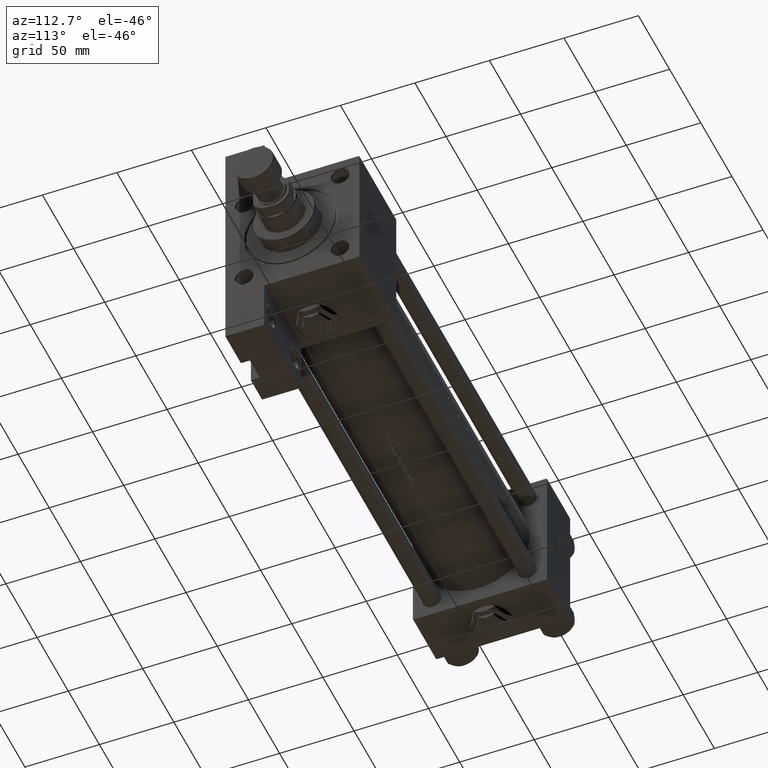
[diagram: clean part render]
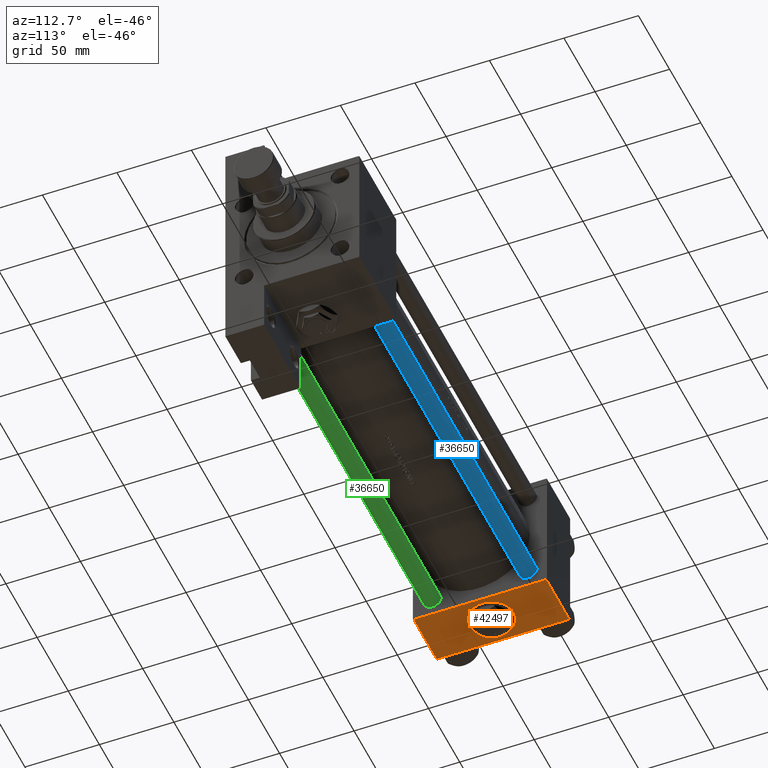
[diagram: same view with three faces highlighted in distinct colors, each labeled with its STEP entity id]
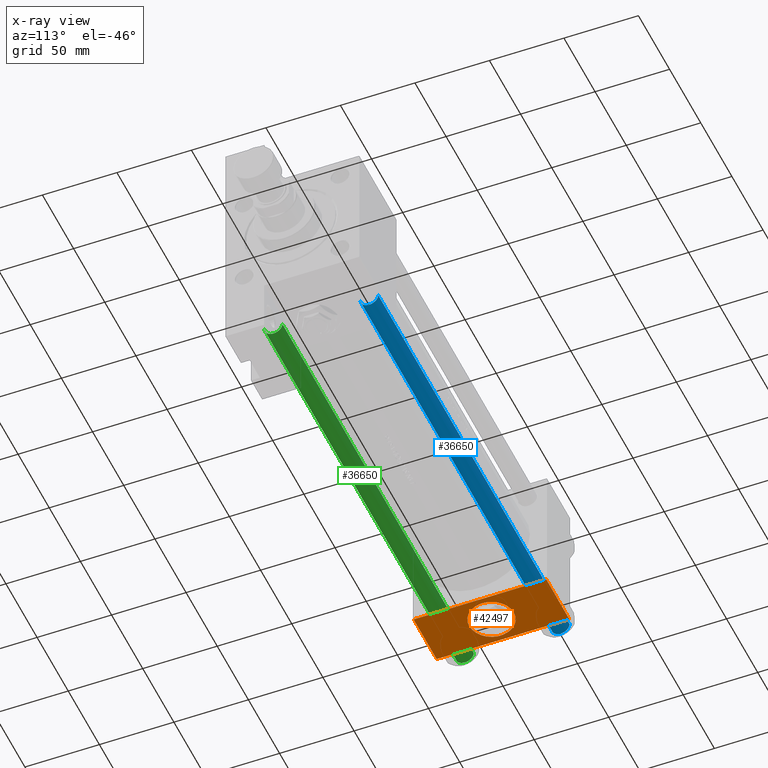
[diagram: x-ray of the same camera — body ghosted, the three highlighted faces saturated]
A machine part, auxiliary view with three faces highlighted in distinct colors.
The next image is the same camera in x-ray (body ghosted, the three faces saturated) — at least one of them is partly hidden behind the body in this view.
Their STEP definitions:

[orange] entity #42497 — the highlighted planar face has unit normal (0, 0, -1).
#186 = CARTESIAN_POINT ( 'NONE',  ( 0.000000000000000000, 44.99999999999998579, -44.49999999999995737 ) ) ;
#733 = VERTEX_POINT ( 'NONE', #7437 ) ;
#854 = CARTESIAN_POINT ( 'NONE',  ( 37.00000000000000000, 44.99999999999998579, 44.50000000000001421 ) ) ;
#3288 = PLANE ( 'NONE',  #39274 ) ;
#3730 = EDGE_CURVE ( 'NONE', #7628, #47874, #37850, .T. ) ;
#4445 = CIRCLE ( 'NONE', #16598, 15.00000000000000178 ) ;
#4680 = DIRECTION ( 'NONE',  ( 0.000000000000000000, 1.000000000000000000, 0.000000000000000000 ) ) ;
#6849 = DIRECTION ( 'NONE',  ( -0.000000000000000000, 1.000000000000000000, 0.000000000000000000 ) ) ;
#6911 = ORIENTED_EDGE ( 'NONE', *, *, #21029, .T. ) ;
#6941 = CARTESIAN_POINT ( 'NONE',  ( 18.50000000000000000, 44.99999999999998579, 0.000000000000000000 ) ) ;
#7437 = CARTESIAN_POINT ( 'NONE',  ( 0.000000000000000000, 44.99999999999998579, 44.50000000000001421 ) ) ;
#7628 = VERTEX_POINT ( 'NONE', #854 ) ;
#9437 = ORIENTED_EDGE ( 'NONE', *, *, #10109, .F. ) ;
#10109 = EDGE_CURVE ( 'NONE', #25025, #46648, #4445, .T. ) ;
#11145 = EDGE_LOOP ( 'NONE', ( #18199, #9437 ) ) ;
#12917 = ORIENTED_EDGE ( 'NONE', *, *, #13966, .T. ) ;
#13966 = EDGE_CURVE ( 'NONE', #733, #7628, #45042, .T. ) ;
#16092 = VECTOR ( 'NONE', #31459, 1000.000000000000000 ) ;
#16403 = VERTEX_POINT ( 'NONE', #186 ) ;
#16598 = AXIS2_PLACEMENT_3D ( 'NONE', #6941, #19123, #38168 ) ;
#16954 = DIRECTION ( 'NONE',  ( 0.000000000000000000, 0.000000000000000000, -1.000000000000000000 ) ) ;
#18028 = FACE_BOUND ( 'NONE', #11145, .T. ) ;
#18199 = ORIENTED_EDGE ( 'NONE', *, *, #45069, .F. ) ;
#18968 = EDGE_CURVE ( 'NONE', #733, #16403, #47659, .T. ) ;
#19123 = DIRECTION ( 'NONE',  ( 0.000000000000000000, 1.000000000000000000, 0.000000000000000000 ) ) ;
#21029 = EDGE_CURVE ( 'NONE', #47874, #16403, #35513, .T. ) ;
#21709 = VECTOR ( 'NONE', #16954, 1000.000000000000000 ) ;
#25025 = VERTEX_POINT ( 'NONE', #29092 ) ;
#25909 = CARTESIAN_POINT ( 'NONE',  ( 37.00000000000000000, 44.99999999999998579, 45.00000000000001421 ) ) ;
#27288 = CARTESIAN_POINT ( 'NONE',  ( 18.50000000000000000, 44.99999999999998579, 0.000000000000000000 ) ) ;
#27787 = DIRECTION ( 'NONE',  ( 0.000000000000000000, 0.000000000000000000, 1.000000000000000000 ) ) ;
#28644 = CARTESIAN_POINT ( 'NONE',  ( 0.000000000000000000, 44.99999999999998579, 45.00000000000001421 ) ) ;
#28671 = VECTOR ( 'NONE', #49501, 1000.000000000000000 ) ;
#28850 = CIRCLE ( 'NONE', #32084, 15.00000000000000178 ) ;
#29092 = CARTESIAN_POINT ( 'NONE',  ( 18.50000000000000355, 44.99999999999998579, -15.00000000000000178 ) ) ;
#29727 = FACE_OUTER_BOUND ( 'NONE', #34301, .T. ) ;
#31349 = VECTOR ( 'NONE', #46192, 1000.000000000000000 ) ;
#31459 = DIRECTION ( 'NONE',  ( -1.000000000000000000, 0.000000000000000000, 0.000000000000000000 ) ) ;
#31639 = ORIENTED_EDGE ( 'NONE', *, *, #18968, .F. ) ;
#32084 = AXIS2_PLACEMENT_3D ( 'NONE', #27288, #4680, #27787 ) ;
#34301 = EDGE_LOOP ( 'NONE', ( #45104, #6911, #31639, #12917 ) ) ;
#34990 = CARTESIAN_POINT ( 'NONE',  ( 37.00000000000000000, 44.99999999999998579, -44.49999999999998579 ) ) ;
#35513 = LINE ( 'NONE', #34990, #16092 ) ;
#37850 = LINE ( 'NONE', #50007, #28671 ) ;
#38168 = DIRECTION ( 'NONE',  ( 0.000000000000000000, 0.000000000000000000, 1.000000000000000000 ) ) ;
#39274 = AXIS2_PLACEMENT_3D ( 'NONE', #25909, #6849, #49486 ) ;
#41843 = CARTESIAN_POINT ( 'NONE',  ( 18.50000000000000000, 44.99999999999998579, 15.00000000000000178 ) ) ;
#42497 = ADVANCED_FACE ( 'NONE', ( #18028, #29727 ), #3288, .T. ) ;
#42680 = CARTESIAN_POINT ( 'NONE',  ( 37.00000000000000000, 44.99999999999998579, -44.49999999999995737 ) ) ;
#45042 = LINE ( 'NONE', #48574, #31349 ) ;
#45069 = EDGE_CURVE ( 'NONE', #46648, #25025, #28850, .T. ) ;
#45104 = ORIENTED_EDGE ( 'NONE', *, *, #3730, .T. ) ;
#46192 = DIRECTION ( 'NONE',  ( 1.000000000000000000, 0.000000000000000000, 0.000000000000000000 ) ) ;
#46648 = VERTEX_POINT ( 'NONE', #41843 ) ;
#47659 = LINE ( 'NONE', #28644, #21709 ) ;
#47874 = VERTEX_POINT ( 'NONE', #42680 ) ;
#48574 = CARTESIAN_POINT ( 'NONE',  ( 37.00000000000000000, 44.99999999999998579, 44.50000000000001421 ) ) ;
#49486 = DIRECTION ( 'NONE',  ( 0.000000000000000000, -0.000000000000000000, 1.000000000000000000 ) ) ;
#49501 = DIRECTION ( 'NONE',  ( 0.000000000000000000, 0.000000000000000000, -1.000000000000000000 ) ) ;
#50007 = CARTESIAN_POINT ( 'NONE',  ( 37.00000000000000000, 44.99999999999998579, 45.00000000000001421 ) ) ;

[blue] entity #36650 — the highlighted cylindrical surface (edge-blend (fillet) strip) has radius 6 mm, axis along (-1, -0, 0).
#429 = ORIENTED_EDGE ( 'NONE', *, *, #10012, .T. ) ;
#449 = CARTESIAN_POINT ( 'NONE',  ( 0.000000000000000000, 0.000000000000000000, 308.0000000000000000 ) ) ;
#1341 = EDGE_CURVE ( 'NONE', #7013, #6409, #8137, .T. ) ;
#1622 = AXIS2_PLACEMENT_3D ( 'NONE', #15727, #11913, #27161 ) ;
#4006 = AXIS2_PLACEMENT_3D ( 'NONE', #40482, #40985, #5683 ) ;
#4343 = CARTESIAN_POINT ( 'NONE',  ( 6.000000000000000888, 7.347880794884120722E-16, 308.0000000000000000 ) ) ;
#5683 = DIRECTION ( 'NONE',  ( 1.000000000000000000, 0.000000000000000000, 0.000000000000000000 ) ) ;
#6409 = VERTEX_POINT ( 'NONE', #25276 ) ;
#7013 = VERTEX_POINT ( 'NONE', #49049 ) ;
#7539 = AXIS2_PLACEMENT_3D ( 'NONE', #449, #11867, #31433 ) ;
#8137 = LINE ( 'NONE', #4343, #17244 ) ;
#10012 = EDGE_CURVE ( 'NONE', #50183, #28275, #26250, .T. ) ;
#11867 = DIRECTION ( 'NONE',  ( -0.000000000000000000, -0.000000000000000000, -1.000000000000000000 ) ) ;
#11913 = DIRECTION ( 'NONE',  ( -0.000000000000000000, -0.000000000000000000, 1.000000000000000000 ) ) ;
#11954 = DIRECTION ( 'NONE',  ( -0.000000000000000000, -0.000000000000000000, -1.000000000000000000 ) ) ;
#15672 = FACE_OUTER_BOUND ( 'NONE', #46973, .T. ) ;
#15727 = CARTESIAN_POINT ( 'NONE',  ( 0.000000000000000000, 0.000000000000000000, 0.5000000000000559552 ) ) ;
#17105 = EDGE_CURVE ( 'NONE', #7013, #50183, #24166, .T. ) ;
#17244 = VECTOR ( 'NONE', #11954, 1000.000000000000000 ) ;
#18764 = CARTESIAN_POINT ( 'NONE',  ( -6.000000000000000888, 0.000000000000000000, 0.5000000000000559552 ) ) ;
#22936 = DIRECTION ( 'NONE',  ( -0.000000000000000000, -0.000000000000000000, -1.000000000000000000 ) ) ;
#24166 = CIRCLE ( 'NONE', #4006, 6.000000000000000888 ) ;
#25276 = CARTESIAN_POINT ( 'NONE',  ( 6.000000000000000888, 7.347880794884120722E-16, 0.5000000000000559552 ) ) ;
#26250 = LINE ( 'NONE', #45787, #31203 ) ;
#26891 = ORIENTED_EDGE ( 'NONE', *, *, #28464, .T. ) ;
#27161 = DIRECTION ( 'NONE',  ( 1.000000000000000000, 0.000000000000000000, 0.000000000000000000 ) ) ;
#28275 = VERTEX_POINT ( 'NONE', #18764 ) ;
#28464 = EDGE_CURVE ( 'NONE', #28275, #6409, #49434, .T. ) ;
#29082 = ORIENTED_EDGE ( 'NONE', *, *, #1341, .F. ) ;
#31180 = CYLINDRICAL_SURFACE ( 'NONE', #7539, 6.000000000000000888 ) ;
#31203 = VECTOR ( 'NONE', #22936, 1000.000000000000000 ) ;
#31433 = DIRECTION ( 'NONE',  ( -1.000000000000000000, 0.000000000000000000, 0.000000000000000000 ) ) ;
#31468 = CARTESIAN_POINT ( 'NONE',  ( -6.000000000000000888, 0.000000000000000000, 307.4999999999999432 ) ) ;
#36650 = ADVANCED_FACE ( 'NONE', ( #15672 ), #31180, .T. ) ;
#40482 = CARTESIAN_POINT ( 'NONE',  ( 0.000000000000000000, 0.000000000000000000, 307.4999999999999432 ) ) ;
#40985 = DIRECTION ( 'NONE',  ( 0.000000000000000000, 0.000000000000000000, -1.000000000000000000 ) ) ;
#44941 = ORIENTED_EDGE ( 'NONE', *, *, #17105, .T. ) ;
#45787 = CARTESIAN_POINT ( 'NONE',  ( -6.000000000000000888, 0.000000000000000000, 308.0000000000000000 ) ) ;
#46973 = EDGE_LOOP ( 'NONE', ( #29082, #44941, #429, #26891 ) ) ;
#49049 = CARTESIAN_POINT ( 'NONE',  ( 6.000000000000000888, 7.347880794884120722E-16, 307.4999999999999432 ) ) ;
#49434 = CIRCLE ( 'NONE', #1622, 6.000000000000000888 ) ;
#50183 = VERTEX_POINT ( 'NONE', #31468 ) ;

[green] entity #36650 — the highlighted cylindrical surface (edge-blend (fillet) strip) has radius 6 mm, axis along (1, 0, 0).
#429 = ORIENTED_EDGE ( 'NONE', *, *, #10012, .T. ) ;
#449 = CARTESIAN_POINT ( 'NONE',  ( 0.000000000000000000, 0.000000000000000000, 308.0000000000000000 ) ) ;
#1341 = EDGE_CURVE ( 'NONE', #7013, #6409, #8137, .T. ) ;
#1622 = AXIS2_PLACEMENT_3D ( 'NONE', #15727, #11913, #27161 ) ;
#4006 = AXIS2_PLACEMENT_3D ( 'NONE', #40482, #40985, #5683 ) ;
#4343 = CARTESIAN_POINT ( 'NONE',  ( 6.000000000000000888, 7.347880794884120722E-16, 308.0000000000000000 ) ) ;
#5683 = DIRECTION ( 'NONE',  ( 1.000000000000000000, 0.000000000000000000, 0.000000000000000000 ) ) ;
#6409 = VERTEX_POINT ( 'NONE', #25276 ) ;
#7013 = VERTEX_POINT ( 'NONE', #49049 ) ;
#7539 = AXIS2_PLACEMENT_3D ( 'NONE', #449, #11867, #31433 ) ;
#8137 = LINE ( 'NONE', #4343, #17244 ) ;
#10012 = EDGE_CURVE ( 'NONE', #50183, #28275, #26250, .T. ) ;
#11867 = DIRECTION ( 'NONE',  ( -0.000000000000000000, -0.000000000000000000, -1.000000000000000000 ) ) ;
#11913 = DIRECTION ( 'NONE',  ( -0.000000000000000000, -0.000000000000000000, 1.000000000000000000 ) ) ;
#11954 = DIRECTION ( 'NONE',  ( -0.000000000000000000, -0.000000000000000000, -1.000000000000000000 ) ) ;
#15672 = FACE_OUTER_BOUND ( 'NONE', #46973, .T. ) ;
#15727 = CARTESIAN_POINT ( 'NONE',  ( 0.000000000000000000, 0.000000000000000000, 0.5000000000000559552 ) ) ;
#17105 = EDGE_CURVE ( 'NONE', #7013, #50183, #24166, .T. ) ;
#17244 = VECTOR ( 'NONE', #11954, 1000.000000000000000 ) ;
#18764 = CARTESIAN_POINT ( 'NONE',  ( -6.000000000000000888, 0.000000000000000000, 0.5000000000000559552 ) ) ;
#22936 = DIRECTION ( 'NONE',  ( -0.000000000000000000, -0.000000000000000000, -1.000000000000000000 ) ) ;
#24166 = CIRCLE ( 'NONE', #4006, 6.000000000000000888 ) ;
#25276 = CARTESIAN_POINT ( 'NONE',  ( 6.000000000000000888, 7.347880794884120722E-16, 0.5000000000000559552 ) ) ;
#26250 = LINE ( 'NONE', #45787, #31203 ) ;
#26891 = ORIENTED_EDGE ( 'NONE', *, *, #28464, .T. ) ;
#27161 = DIRECTION ( 'NONE',  ( 1.000000000000000000, 0.000000000000000000, 0.000000000000000000 ) ) ;
#28275 = VERTEX_POINT ( 'NONE', #18764 ) ;
#28464 = EDGE_CURVE ( 'NONE', #28275, #6409, #49434, .T. ) ;
#29082 = ORIENTED_EDGE ( 'NONE', *, *, #1341, .F. ) ;
#31180 = CYLINDRICAL_SURFACE ( 'NONE', #7539, 6.000000000000000888 ) ;
#31203 = VECTOR ( 'NONE', #22936, 1000.000000000000000 ) ;
#31433 = DIRECTION ( 'NONE',  ( -1.000000000000000000, 0.000000000000000000, 0.000000000000000000 ) ) ;
#31468 = CARTESIAN_POINT ( 'NONE',  ( -6.000000000000000888, 0.000000000000000000, 307.4999999999999432 ) ) ;
#36650 = ADVANCED_FACE ( 'NONE', ( #15672 ), #31180, .T. ) ;
#40482 = CARTESIAN_POINT ( 'NONE',  ( 0.000000000000000000, 0.000000000000000000, 307.4999999999999432 ) ) ;
#40985 = DIRECTION ( 'NONE',  ( 0.000000000000000000, 0.000000000000000000, -1.000000000000000000 ) ) ;
#44941 = ORIENTED_EDGE ( 'NONE', *, *, #17105, .T. ) ;
#45787 = CARTESIAN_POINT ( 'NONE',  ( -6.000000000000000888, 0.000000000000000000, 308.0000000000000000 ) ) ;
#46973 = EDGE_LOOP ( 'NONE', ( #29082, #44941, #429, #26891 ) ) ;
#49049 = CARTESIAN_POINT ( 'NONE',  ( 6.000000000000000888, 7.347880794884120722E-16, 307.4999999999999432 ) ) ;
#49434 = CIRCLE ( 'NONE', #1622, 6.000000000000000888 ) ;
#50183 = VERTEX_POINT ( 'NONE', #31468 ) ;